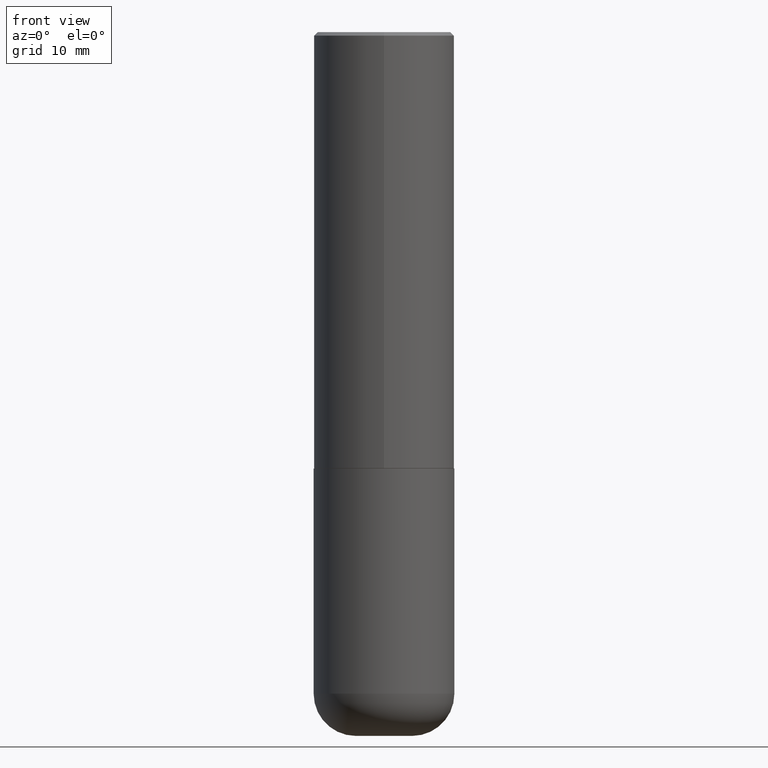
[diagram: clean part render]
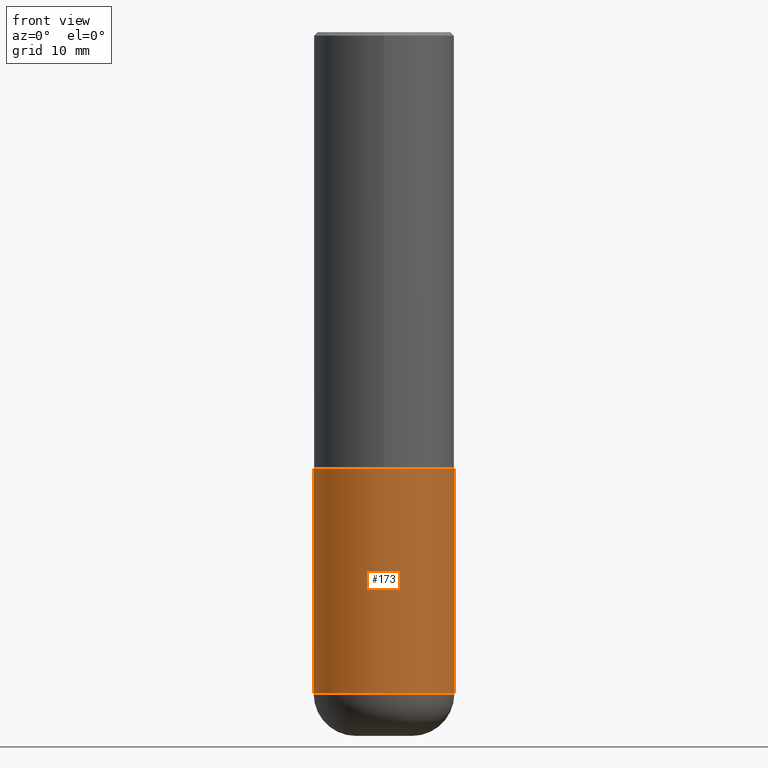
[diagram: same view with one face highlighted and labeled with its STEP entity id]
A machine part, front view. The second image highlights one B-rep face of the part: STEP entity #173.
In plain terms, the highlighted cylindrical surface (partial cylindrical patch) has radius 10 mm, axis along (-0, 0, 1).
Its self-contained STEP definition (entity closure, byte-faithful):
#1 = DIRECTION ( 'NONE',  ( -2.445468806185136597E-29, 3.491481338843145583E-15, 1.000000000000000000 ) ) ;
#14 = VECTOR ( 'NONE', #190, 39.37007874015748143 ) ;
#19 = VECTOR ( 'NONE', #329, 39.37007874015748143 ) ;
#43 = AXIS2_PLACEMENT_3D ( 'NONE', #202, #397, #72 ) ;
#50 = CARTESIAN_POINT ( 'NONE',  ( 0.3937000000000000499, -1.127154920618731776E-14, -2.440900000000000070 ) ) ;
#53 = EDGE_CURVE ( 'NONE', #89, #111, #404, .T. ) ;
#58 = CARTESIAN_POINT ( 'NONE',  ( 0.000000000000000000, 0.000000000000000000, 0.000000000000000000 ) ) ;
#59 = CARTESIAN_POINT ( 'NONE',  ( 0.3936999999999999389, -1.567046654499579837E-14, -3.700800000000000090 ) ) ;
#63 = CYLINDRICAL_SURFACE ( 'NONE', #319, 0.3936999999999999389 ) ;
#72 = DIRECTION ( 'NONE',  ( 1.000000000000000000, -6.982962677686267499E-15, 0.000000000000000000 ) ) ;
#78 = CARTESIAN_POINT ( 'NONE',  ( -0.3936999999999999389, 2.797406750687513998E-15, -1.936584745033356455E-29 ) ) ;
#89 = VERTEX_POINT ( 'NONE', #316 ) ;
#92 = DIRECTION ( 'NONE',  ( -2.445468806185136597E-29, 3.491481338843145583E-15, 1.000000000000000000 ) ) ;
#95 = CARTESIAN_POINT ( 'NONE',  ( 0.3936999999999999389, -2.749192406205082822E-15, 1.919750796630859611E-29 ) ) ;
#99 = EDGE_CURVE ( 'NONE', #111, #380, #194, .T. ) ;
#111 = VERTEX_POINT ( 'NONE', #59 ) ;
#118 = DIRECTION ( 'NONE',  ( 1.000000000000000000, -6.982962677686266711E-15, 4.876176775795935793E-29 ) ) ;
#173 = ADVANCED_FACE ( 'NONE', ( #348 ), #63, .T. ) ;
#183 = ORIENTED_EDGE ( 'NONE', *, *, #99, .T. ) ;
#185 = ORIENTED_EDGE ( 'NONE', *, *, #236, .F. ) ;
#190 = DIRECTION ( 'NONE',  ( -2.445468806185136877E-29, 3.491481338843145188E-15, 1.000000000000000000 ) ) ;
#194 = LINE ( 'NONE', #95, #14 ) ;
#202 = CARTESIAN_POINT ( 'NONE',  ( 5.969144809017300159E-29, -8.522356799982234543E-15, -2.440900000000000070 ) ) ;
#225 = CIRCLE ( 'NONE', #43, 0.3937000000000000499 ) ;
#236 = EDGE_CURVE ( 'NONE', #294, #380, #225, .T. ) ;
#237 = LINE ( 'NONE', #78, #19 ) ;
#254 = CARTESIAN_POINT ( 'NONE',  ( 9.050190957929953666E-29, -1.292127413879071357E-14, -3.700800000000000090 ) ) ;
#259 = CARTESIAN_POINT ( 'NONE',  ( -0.3937000000000000499, -7.924408718698959272E-15, -2.440900000000000070 ) ) ;
#269 = EDGE_CURVE ( 'NONE', #89, #294, #237, .T. ) ;
#283 = ORIENTED_EDGE ( 'NONE', *, *, #269, .F. ) ;
#294 = VERTEX_POINT ( 'NONE', #259 ) ;
#301 = EDGE_LOOP ( 'NONE', ( #283, #304, #183, #185 ) ) ;
#304 = ORIENTED_EDGE ( 'NONE', *, *, #53, .T. ) ;
#316 = CARTESIAN_POINT ( 'NONE',  ( -0.3936999999999999389, -1.012386738810319800E-14, -3.700800000000000090 ) ) ;
#319 = AXIS2_PLACEMENT_3D ( 'NONE', #58, #1, #118 ) ;
#329 = DIRECTION ( 'NONE',  ( -2.445468806185136877E-29, 3.491481338843145188E-15, 1.000000000000000000 ) ) ;
#348 = FACE_OUTER_BOUND ( 'NONE', #301, .T. ) ;
#352 = DIRECTION ( 'NONE',  ( 1.000000000000000000, -6.982962677686269866E-15, 0.000000000000000000 ) ) ;
#380 = VERTEX_POINT ( 'NONE', #50 ) ;
#382 = AXIS2_PLACEMENT_3D ( 'NONE', #254, #92, #352 ) ;
#397 = DIRECTION ( 'NONE',  ( -2.445468806185136597E-29, 3.491481338843145583E-15, 1.000000000000000000 ) ) ;
#404 = CIRCLE ( 'NONE', #382, 0.3936999999999999389 ) ;